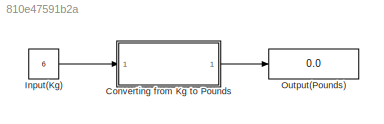
MODEL slx_810e47591b2a
KIND model
CONFIG AbsTol = auto
CONFIG EnableMultiTasking = off
CONFIG FixedStep = auto
CONFIG MaxStep = auto
CONFIG MinStep = auto
CONFIG RelTol = 1e-3
CONFIG SampleTimeConstraint = Unconstrained
CONFIG SolverName = VariableStepAuto
CONFIG StartTime = 0.0
CONFIG StopTime = 10.0
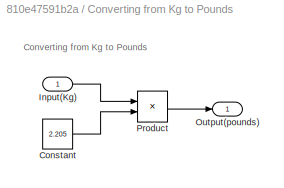
BLOCK [SubSystem] Converting from Kg to Pounds
  Ports = [1, 1]
  RequestExecContextInheritance = off
BLOCK [Constant] Converting from Kg to Pounds/Constant
  Value = 2.205
BLOCK [Inport] Converting from Kg to Pounds/Input(Kg)
BLOCK [Outport] Converting from Kg to Pounds/Output(pounds)
BLOCK [Product] Converting from Kg to Pounds/Product
  Ports = [2, 1]
BLOCK [Constant] Input(Kg)
  Value = 6
BLOCK [Display] Output(Pounds)
  Decimation = 1
  Ports = [1]
ANNOTATION Converting from Kg to Pounds: Converting from Kg to Pounds
LINE Converting from Kg to Pounds/Constant:1 -> Converting from Kg to Pounds/Product:2
LINE Converting from Kg to Pounds/Input(Kg):1 -> Converting from Kg to Pounds/Product:1
LINE Converting from Kg to Pounds/Product:1 -> Converting from Kg to Pounds/Output(pounds):1
LINE Converting from Kg to Pounds:1 -> Output(Pounds):1
LINE Input(Kg):1 -> Converting from Kg to Pounds:1
